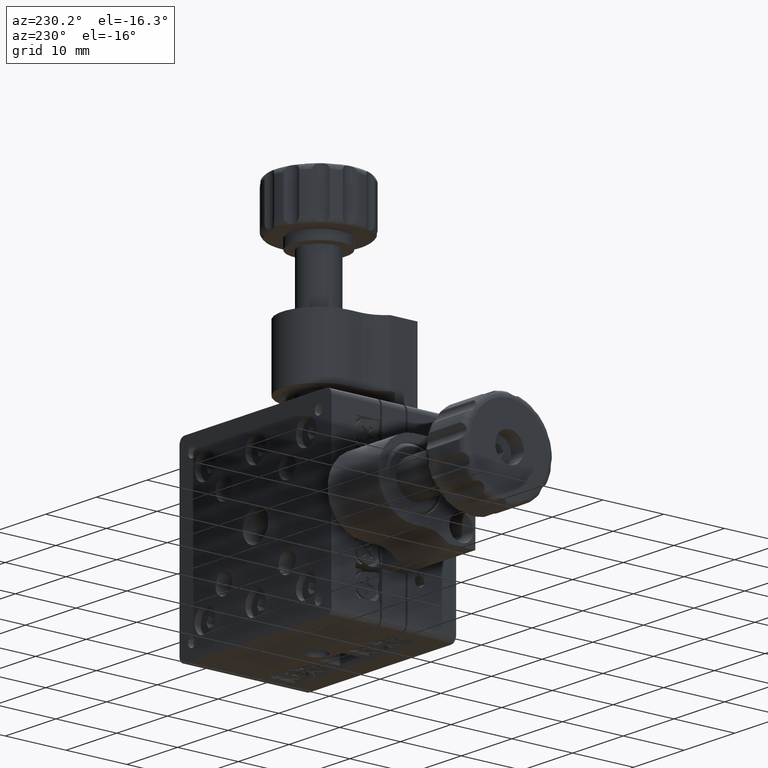
[diagram: clean part render]
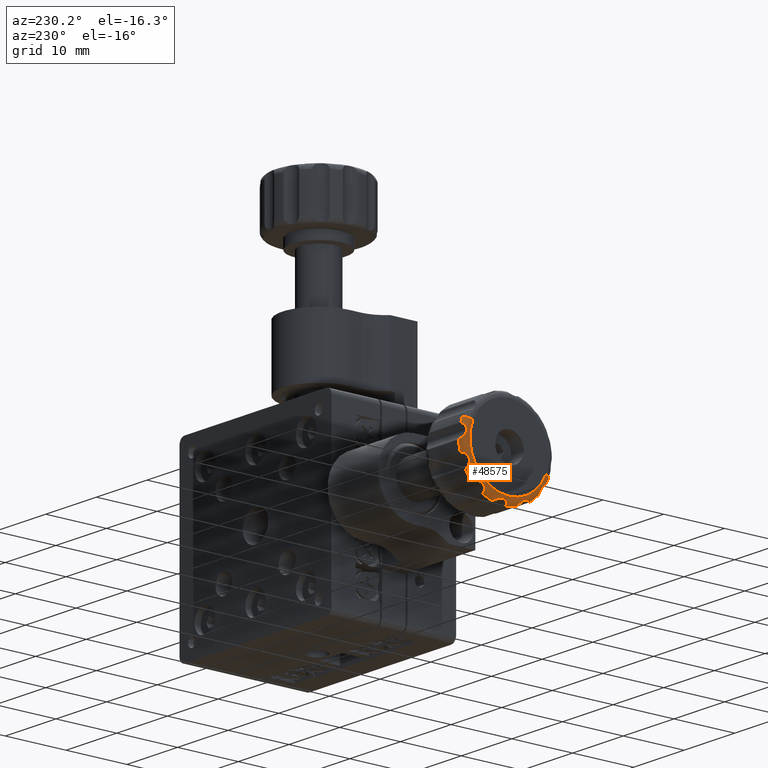
[diagram: same view with one face highlighted and labeled with its STEP entity id]
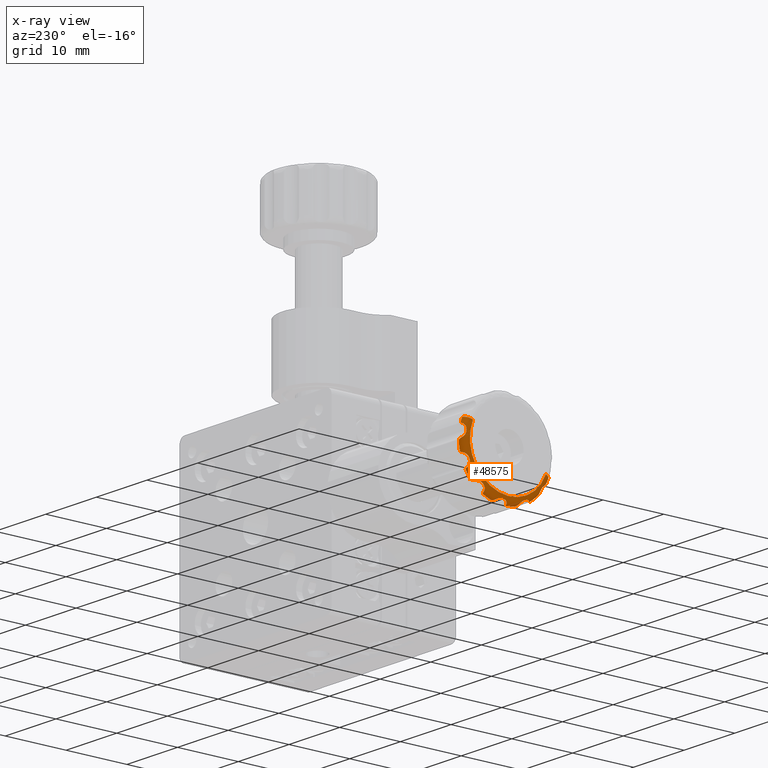
[diagram: x-ray of the same camera — body ghosted, the highlighted face saturated]
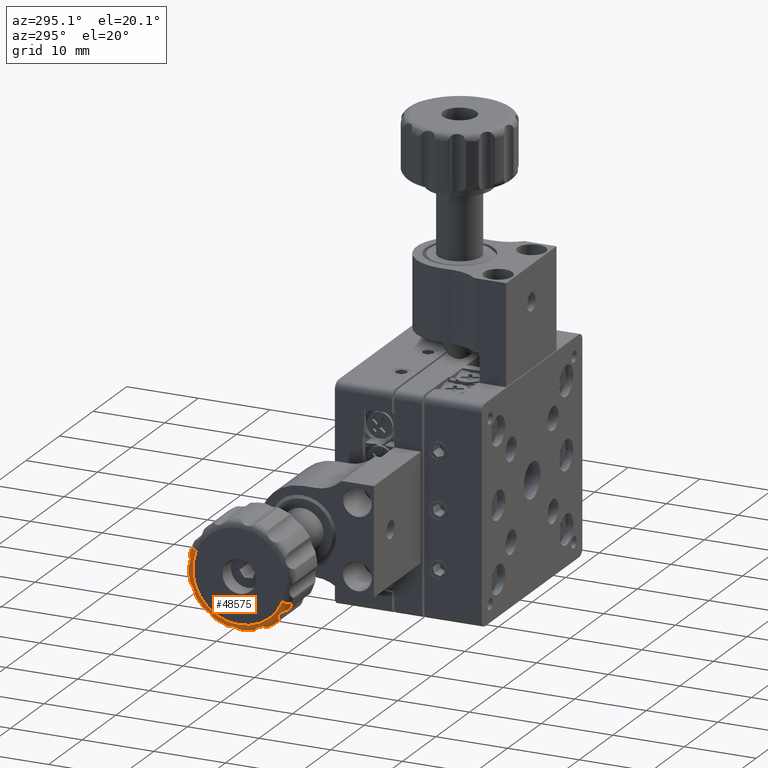
[diagram: same view with one face highlighted and labeled with its STEP entity id]
A machine part, auxiliary view. The second image highlights one B-rep face of the part: STEP entity #48575.
The next image is the same camera in x-ray: the body ghosted, the highlighted face saturated — about 0% of this face is hidden behind the body in this view.
A second angle (auxiliary view) of the same face is appended — the face is thin or edge-on in the first view.
In plain terms, the highlighted toroidal blend (fillet) surface has major radius 6.5 mm and minor (blend) radius 1 mm.
Its self-contained STEP definition (entity closure, byte-faithful):
#133 = AXIS2_PLACEMENT_3D ( 'NONE', #1102, #438, #8916 ) ;
#438 = DIRECTION ( 'NONE',  ( -1.000000000000000000, 0.0000000000000000000, 0.0000000000000000000 ) ) ;
#491 = ORIENTED_EDGE ( 'NONE', *, *, #20602, .F. ) ;
#625 = DIRECTION ( 'NONE',  ( 0.0000000000000000000, -0.9242245927363022000, -0.3818493186865945500 ) ) ;
#701 = TOROIDAL_SURFACE ( 'NONE', #13576, 6.500000000000000000, 1.000000000000000000 ) ;
#800 = DIRECTION ( 'NONE',  ( 1.000000000000000000, -0.0000000000000000000, -0.0000000000000000000 ) ) ;
#950 = ORIENTED_EDGE ( 'NONE', *, *, #3178, .T. ) ;
#1067 = B_SPLINE_CURVE_WITH_KNOTS ( 'NONE', 3,
 ( #5712, #45906, #33422, #41389 ),
 .UNSPECIFIED., .F., .F.,
 ( 4, 4 ),
 ( -6.324575239418007400E-006, 0.0004951179910539883300 ),
 .UNSPECIFIED. ) ;
#1102 = CARTESIAN_POINT ( 'NONE',  ( -47.72923949807299200, 18.50000000000000400, 2.602085213965210600E-015 ) ) ;
#1159 = DIRECTION ( 'NONE',  ( 0.0000000000000000000, -0.9242245927363023100, -0.3818493186865945500 ) ) ;
#1377 = EDGE_CURVE ( 'NONE', #40897, #47603, #5609, .T. ) ;
#1474 = CARTESIAN_POINT ( 'NONE',  ( -46.87427638826797200, 22.12938030061657500, -6.563853453505355900 ) ) ;
#1627 = CARTESIAN_POINT ( 'NONE',  ( -46.72923949807299200, 11.89768340571474200, -3.558007249687071800 ) ) ;
#1660 = CARTESIAN_POINT ( 'NONE',  ( -47.31300178631298100, 22.23845300450247100, -6.288320218083939900 ) ) ;
#1715 = CARTESIAN_POINT ( 'NONE',  ( -47.72923949807299200, 24.50745985278598500, 2.482020571462876900 ) ) ;
#1748 = CARTESIAN_POINT ( 'NONE',  ( -47.16068431325097500, 13.25096975047614800, -5.219132888349426100 ) ) ;
#1762 = DIRECTION ( 'NONE',  ( 1.000000000000000000, -0.0000000000000000000, -0.0000000000000000000 ) ) ;
#1767 = CIRCLE ( 'NONE', #5248, 7.500000000000027500 ) ;
#2260 = CARTESIAN_POINT ( 'NONE',  ( -47.59535316058478600, 25.46582222566719300, 0.7160895652106475900 ) ) ;
#2514 = FACE_OUTER_BOUND ( 'NONE', #39214, .T. ) ;
#2713 = ORIENTED_EDGE ( 'NONE', *, *, #14689, .F. ) ;
#3119 = CARTESIAN_POINT ( 'NONE',  ( -46.72923949807299200, 18.50000000000000400, 2.602085213965210600E-015 ) ) ;
#3178 = EDGE_CURVE ( 'NONE', #34632, #40195, #39506, .T. ) ;
#3181 = CARTESIAN_POINT ( 'NONE',  ( -46.72923949807299200, 25.99677751932213000, -0.2198336320643761200 ) ) ;
#3271 = EDGE_CURVE ( 'NONE', #15847, #16289, #35829, .T. ) ;
#3405 = DIRECTION ( 'NONE',  ( 0.0000000000000000000, -0.9242245927363022000, -0.3818493186865945500 ) ) ;
#3578 = CARTESIAN_POINT ( 'NONE',  ( -47.16068431325096800, 16.56377290285408700, -7.144416791799386600 ) ) ;
#3823 = CARTESIAN_POINT ( 'NONE',  ( -46.87427638826667200, 24.92506226708265200, -3.869773687143574400 ) ) ;
#4089 = DIRECTION ( 'NONE',  ( 1.000000000000000000, -0.0000000000000000000, -0.0000000000000000000 ) ) ;
#4099 = CARTESIAN_POINT ( 'NONE',  ( -47.24184603494131800, 14.85665313200521700, -6.398897979981313700 ) ) ;
#4314 = B_SPLINE_CURVE_WITH_KNOTS ( 'NONE', 3,
 ( #46853, #7504, #18817, #18988 ),
 .UNSPECIFIED., .F., .F.,
 ( 4, 4 ),
 ( 6.474493721195769700E-016, 0.0004984791478706611600 ),
 .UNSPECIFIED. ) ;
#4423 = CARTESIAN_POINT ( 'NONE',  ( -46.72923949807299200, 18.50000000000000400, 2.602085213965210600E-015 ) ) ;
#4473 = CIRCLE ( 'NONE', #36023, 7.500000000000026600 ) ;
#4663 = CARTESIAN_POINT ( 'NONE',  ( -47.31259374960123400, 20.29060998050661300, -7.093446230933680300 ) ) ;
#4714 = EDGE_CURVE ( 'NONE', #41255, #45092, #4314, .T. ) ;
#4832 = B_SPLINE_CURVE_WITH_KNOTS ( 'NONE', 3,
 ( #20574, #36620, #24552, #40610, #44784, #44614 ),
 .UNSPECIFIED., .F., .F.,
 ( 4, 2, 4 ),
 ( 0.002010685543980210600, 0.002394731307899062400, 0.002778777071817914100 ),
 .UNSPECIFIED. ) ;
#4858 = CARTESIAN_POINT ( 'NONE',  ( -46.72923949807299200, 20.63967794180212700, -7.188308445341341700 ) ) ;
#4905 = ORIENTED_EDGE ( 'NONE', *, *, #34656, .F. ) ;
#5048 = CARTESIAN_POINT ( 'NONE',  ( -47.02030611300027400, 13.24785255805609600, -5.311213899665712100 ) ) ;
#5115 = EDGE_CURVE ( 'NONE', #18438, #45870, #5183, .T. ) ;
#5183 = B_SPLINE_CURVE_WITH_KNOTS ( 'NONE', 3,
 ( #17508, #29863, #1660, #25759, #5635, #13803, #30033, #49677, #6133, #37839, #9638, #9964, #13629, #41479 ),
 .UNSPECIFIED., .F., .F.,
 ( 4, 2, 2, 2, 2, 2, 4 ),
 ( 0.0004549188434784903500, 0.0007454011220209202000, 0.001035883400563350100, 0.001616847957648214700, 0.002197812514733079000, 0.002488294793275516700, 0.002778777071817953600 ),
 .UNSPECIFIED. ) ;
#5248 = AXIS2_PLACEMENT_3D ( 'NONE', #21719, #1762, #45112 ) ;
#5465 = B_SPLINE_CURVE_WITH_KNOTS ( 'NONE', 3,
 ( #17257, #13050, #5048, #1748 ),
 .UNSPECIFIED., .F., .F.,
 ( 4, 4 ),
 ( -6.324575239424110300E-006, 0.0004951179910539842100 ),
 .UNSPECIFIED. ) ;
#5485 = DIRECTION ( 'NONE',  ( 0.0000000000000000000, -0.3818493186865946600, 0.9242245927363020900 ) ) ;
#5609 = CIRCLE ( 'NONE', #20533, 7.500000000000025800 ) ;
#5635 = CARTESIAN_POINT ( 'NONE',  ( -47.47273995959718500, 22.33136418245548800, -6.061997129288461600 ) ) ;
#5712 = CARTESIAN_POINT ( 'NONE',  ( -46.72923949807299200, 25.79509669480489400, -1.741138769152789800 ) ) ;
#5904 = CARTESIAN_POINT ( 'NONE',  ( -47.59517619767457600, 25.41579720800249500, 1.100683261038852600 ) ) ;
#6037 = VERTEX_POINT ( 'NONE', #50779 ) ;
#6077 = CARTESIAN_POINT ( 'NONE',  ( -47.55651873016999100, 13.13816540636649700, -4.595608906342050700 ) ) ;
#6133 = CARTESIAN_POINT ( 'NONE',  ( -47.57167470429413900, 23.09021082383154100, -5.352019522001051600 ) ) ;
#6981 = ORIENTED_EDGE ( 'NONE', *, *, #16419, .F. ) ;
#7233 = EDGE_CURVE ( 'NONE', #10167, #26097, #4473, .T. ) ;
#7401 = B_SPLINE_CURVE_WITH_KNOTS ( 'NONE', 3,
 ( #4858, #33072, #13194, #48530 ),
 .UNSPECIFIED., .F., .F.,
 ( 4, 4 ),
 ( -6.324575239416394700E-006, 0.0004951179910539868100 ),
 .UNSPECIFIED. ) ;
#7504 = CARTESIAN_POINT ( 'NONE',  ( -47.02029545191668800, 14.71747604945550800, -6.441011968185068600 ) ) ;
#7538 = DIRECTION ( 'NONE',  ( 0.0000000000000000000, 0.9242245927363023100, 0.3818493186865945500 ) ) ;
#7626 = DIRECTION ( 'NONE',  ( 0.0000000000000000000, -0.9242245927363025300, -0.3818493186865937200 ) ) ;
#7699 = B_SPLINE_CURVE_WITH_KNOTS ( 'NONE', 3,
 ( #42951, #50269, #14754, #42424 ),
 .UNSPECIFIED., .F., .F.,
 ( 4, 4 ),
 ( 6.465708425834016500E-016, 0.0004984791478706566100 ),
 .UNSPECIFIED. ) ;
#7725 = CARTESIAN_POINT ( 'NONE',  ( -47.59517619767457600, 15.99532106157864900, -6.539597700071058600 ) ) ;
#7737 = ORIENTED_EDGE ( 'NONE', *, *, #33682, .F. ) ;
#7850 = CARTESIAN_POINT ( 'NONE',  ( -47.02030611300027400, 16.60711384068796900, -7.225719883015468500 ) ) ;
#7854 = CARTESIAN_POINT ( 'NONE',  ( -47.16068431325097500, 25.64441679179937900, -1.936227097145873700 ) ) ;
#8019 = CARTESIAN_POINT ( 'NONE',  ( -47.24243514451052300, 25.59706901786427800, -1.961467182067537300 ) ) ;
#8790 = CARTESIAN_POINT ( 'NONE',  ( -46.72923949807299200, 18.28016636793557100, -7.496777519322136200 ) ) ;
#8898 = EDGE_CURVE ( 'NONE', #34387, #49086, #1767, .T. ) ;
#8916 = DIRECTION ( 'NONE',  ( 0.0000000000000000000, -0.9242245927363020900, -0.3818493186865946100 ) ) ;
#9029 = DIRECTION ( 'NONE',  ( 1.000000000000000000, -0.0000000000000000000, -0.0000000000000000000 ) ) ;
#9348 = CARTESIAN_POINT ( 'NONE',  ( -46.72923949807299200, 11.89768340571474200, -3.558007249687071800 ) ) ;
#9638 = CARTESIAN_POINT ( 'NONE',  ( -47.42812950136064400, 23.44138125539736000, -5.263375453375866500 ) ) ;
#9830 = ORIENTED_EDGE ( 'NONE', *, *, #44813, .F. ) ;
#9964 = CARTESIAN_POINT ( 'NONE',  ( -47.31259374960121300, 23.59743684685552600, -5.247799646114222200 ) ) ;
#10074 = CARTESIAN_POINT ( 'NONE',  ( -47.31259374960121300, 25.59344623093368300, 1.790609980506647800 ) ) ;
#10167 = VERTEX_POINT ( 'NONE', #42435 ) ;
#10404 = CARTESIAN_POINT ( 'NONE',  ( -47.57212920228192800, 25.53042964037956300, 0.5275541292080611100 ) ) ;
#11424 = CARTESIAN_POINT ( 'NONE',  ( -47.16068431324899300, 24.91432580573251700, -3.694332297532912300 ) ) ;
#11481 = CARTESIAN_POINT ( 'NONE',  ( -47.26935592016931800, 12.16290100260669000, -3.724046873113573000 ) ) ;
#11492 = CARTESIAN_POINT ( 'NONE',  ( -46.87513862090722200, 16.67953018675061800, -7.276162558322204700 ) ) ;
#11549 = CARTESIAN_POINT ( 'NONE',  ( -47.24243514451051600, 16.53853281793240300, -7.097069017864269500 ) ) ;
#11839 = CARTESIAN_POINT ( 'NONE',  ( -46.72923949807299200, 25.43168444552229000, 2.863869890149472100 ) ) ;
#12221 = CARTESIAN_POINT ( 'NONE',  ( -46.72923949807299200, 13.34458124699723300, -5.447169676188522700 ) ) ;
#12399 = EDGE_CURVE ( 'NONE', #18438, #49086, #22389, .T. ) ;
#12705 = CARTESIAN_POINT ( 'NONE',  ( -46.72923949807299200, 23.94716967618851900, -5.155418753002742900 ) ) ;
#12900 = VERTEX_POINT ( 'NONE', #7854 ) ;
#13050 = CARTESIAN_POINT ( 'NONE',  ( -46.87513862090946000, 13.28534561574512600, -5.391106710950261900 ) ) ;
#13101 = CARTESIAN_POINT ( 'NONE',  ( -46.72923949807299200, 11.56831555447771500, -2.863869890149465900 ) ) ;
#13194 = CARTESIAN_POINT ( 'NONE',  ( -47.02030611300028100, 20.47357244107156800, -7.204100058977726200 ) ) ;
#13576 = AXIS2_PLACEMENT_3D ( 'NONE', #45392, #14041, #25653 ) ;
#13629 = CARTESIAN_POINT ( 'NONE',  ( -47.24243514451053700, 23.66550847084815200, -5.247214917292118300 ) ) ;
#13803 = CARTESIAN_POINT ( 'NONE',  ( -47.57212920228193600, 22.47209009795530600, -5.824753603483783200 ) ) ;
#13909 = CARTESIAN_POINT ( 'NONE',  ( -47.16068431325097500, 25.65535998549532700, 1.895386542275578000 ) ) ;
#14041 = DIRECTION ( 'NONE',  ( -1.000000000000000000, 0.0000000000000000000, 0.0000000000000000000 ) ) ;
#14419 = CARTESIAN_POINT ( 'NONE',  ( -47.42812950136063000, 25.52890747997762900, 1.647673970270449700 ) ) ;
#14492 = VERTEX_POINT ( 'NONE', #25909 ) ;
#14518 = AXIS2_PLACEMENT_3D ( 'NONE', #3119, #50824, #7626 ) ;
#14609 = CIRCLE ( 'NONE', #50118, 1.000000000000000000 ) ;
#14619 = CARTESIAN_POINT ( 'NONE',  ( -46.72923949807299200, 24.88248296222083800, -3.938770269635024000 ) ) ;
#14689 = EDGE_CURVE ( 'NONE', #31210, #12900, #27787, .T. ) ;
#14754 = CARTESIAN_POINT ( 'NONE',  ( -46.87427638826740400, 25.99915398776218100, -0.1387911864228632800 ) ) ;
#14776 = EDGE_CURVE ( 'NONE', #15847, #45870, #43307, .T. ) ;
#14813 = ORIENTED_EDGE ( 'NONE', *, *, #4714, .T. ) ;
#15516 = CARTESIAN_POINT ( 'NONE',  ( -47.59561365822931800, 12.86769615455925700, -4.157590486914297200 ) ) ;
#15525 = CARTESIAN_POINT ( 'NONE',  ( -47.16068431325096800, 16.56377290285408700, -7.144416791799386600 ) ) ;
#15584 = CARTESIAN_POINT ( 'NONE',  ( -47.16068431324899300, 14.80566770246704800, -6.414325805732516100 ) ) ;
#15706 = CARTESIAN_POINT ( 'NONE',  ( -47.42848856749412800, 24.85671576393867000, -3.421623052128639900 ) ) ;
#15768 = CARTESIAN_POINT ( 'NONE',  ( -47.31300178631296700, 14.92338144625923300, -6.381755381795374900 ) ) ;
#15847 = VERTEX_POINT ( 'NONE', #35407 ) ;
#16002 = CARTESIAN_POINT ( 'NONE',  ( -47.47246242450102500, 20.06516501373600600, -6.998687116058725600 ) ) ;
#16158 = AXIS2_PLACEMENT_3D ( 'NONE', #35254, #30758, #3405 ) ;
#16289 = VERTEX_POINT ( 'NONE', #14619 ) ;
#16419 = EDGE_CURVE ( 'NONE', #33688, #45092, #24256, .T. ) ;
#16543 = CARTESIAN_POINT ( 'NONE',  ( -46.72923949807299200, 14.56122973036493700, -6.382482962220842100 ) ) ;
#16745 = CARTESIAN_POINT ( 'NONE',  ( -47.16068431325097500, 25.64441679179937900, -1.936227097145873700 ) ) ;
#17257 = CARTESIAN_POINT ( 'NONE',  ( -46.72923949807299200, 13.34458124699723300, -5.447169676188522700 ) ) ;
#17508 = CARTESIAN_POINT ( 'NONE',  ( -47.16068431324899300, 22.20780294714796500, -6.406548522551106300 ) ) ;
#17847 = CARTESIAN_POINT ( 'NONE',  ( -47.16068431324899300, 18.50777728318138300, -7.402135244680914100 ) ) ;
#18091 = CARTESIAN_POINT ( 'NONE',  ( -47.31300178631295900, 25.81507155824323300, 0.09343516371147857200 ) ) ;
#18256 = CARTESIAN_POINT ( 'NONE',  ( -47.47273995959717800, 25.66552560285989800, 0.2870601485120631300 ) ) ;
#18438 = VERTEX_POINT ( 'NONE', #45824 ) ;
#18449 = CARTESIAN_POINT ( 'NONE',  ( -47.16068431325097500, 23.71913288834943100, -5.249030249523822400 ) ) ;
#18671 = ORIENTED_EDGE ( 'NONE', *, *, #5115, .F. ) ;
#18817 = CARTESIAN_POINT ( 'NONE',  ( -46.87427638826670800, 14.63022631285633900, -6.425062267082633800 ) ) ;
#18988 = CARTESIAN_POINT ( 'NONE',  ( -46.72923949807299200, 14.56122973036493700, -6.382482962220842100 ) ) ;
#19078 = VERTEX_POINT ( 'NONE', #32350 ) ;
#19375 = CARTESIAN_POINT ( 'NONE',  ( -46.72923949807299200, 12.49254014721401900, -2.482020571462870700 ) ) ;
#19671 = CARTESIAN_POINT ( 'NONE',  ( -47.47273995959719900, 24.84905727780046900, -3.334161420404395200 ) ) ;
#19701 = AXIS2_PLACEMENT_3D ( 'NONE', #19375, #27302, #7538 ) ;
#20010 = CARTESIAN_POINT ( 'NONE',  ( -47.53271844316449100, 12.57407096069276300, -3.907382497369877900 ) ) ;
#20075 = CARTESIAN_POINT ( 'NONE',  ( -47.42812950136063000, 16.41247377541970900, -6.911049423646293400 ) ) ;
#20113 = EDGE_CURVE ( 'NONE', #10167, #12900, #1067, .T. ) ;
#20136 = CARTESIAN_POINT ( 'NONE',  ( -47.59517619767456200, 19.60068326103880300, -6.915797208002486800 ) ) ;
#20352 = CARTESIAN_POINT ( 'NONE',  ( -46.87513862090777600, 23.89110671094819000, -5.214654384257034500 ) ) ;
#20423 = CARTESIAN_POINT ( 'NONE',  ( -46.72923949807299200, 18.50000000000000400, 2.602085213965210600E-015 ) ) ;
#20464 = ORIENTED_EDGE ( 'NONE', *, *, #12399, .T. ) ;
#20469 = CARTESIAN_POINT ( 'NONE',  ( -47.16068431325097500, 20.39538654227552800, -7.155359985495328700 ) ) ;
#20533 = AXIS2_PLACEMENT_3D ( 'NONE', #20423, #800, #625 ) ;
#20574 = CARTESIAN_POINT ( 'NONE',  ( -47.55651873016999100, 13.13816540636649700, -4.595608906342050700 ) ) ;
#20602 = EDGE_CURVE ( 'NONE', #47603, #42442, #14609, .T. ) ;
#21060 = B_SPLINE_CURVE_WITH_KNOTS ( 'NONE', 3,
 ( #35192, #11492, #7850, #15525 ),
 .UNSPECIFIED., .F., .F.,
 ( 4, 4 ),
 ( -6.324575239417384800E-006, 0.0004951179910539841000 ),
 .UNSPECIFIED. ) ;
#21335 = CARTESIAN_POINT ( 'NONE',  ( -47.02029545191668800, 12.00373218431286800, -3.686818015255622200 ) ) ;
#21719 = CARTESIAN_POINT ( 'NONE',  ( -46.72923949807299200, 18.50000000000000400, 2.602085213965210600E-015 ) ) ;
#21753 = CIRCLE ( 'NONE', #133, 6.500000000000022200 ) ;
#22389 = B_SPLINE_CURVE_WITH_KNOTS ( 'NONE', 3,
 ( #48125, #24410, #1474, #45169 ),
 .UNSPECIFIED., .F., .F.,
 ( 4, 4 ),
 ( 6.544760168973907000E-016, 0.0004984791478706624600 ),
 .UNSPECIFIED. ) ;
#23014 = CARTESIAN_POINT ( 'NONE',  ( -47.16068431324899300, 14.80566770246704800, -6.414325805732516100 ) ) ;
#23066 = ORIENTED_EDGE ( 'NONE', *, *, #28110, .T. ) ;
#23132 = ORIENTED_EDGE ( 'NONE', *, *, #31108, .T. ) ;
#23145 = ORIENTED_EDGE ( 'NONE', *, *, #25241, .T. ) ;
#23472 = ORIENTED_EDGE ( 'NONE', *, *, #7233, .F. ) ;
#23634 = CARTESIAN_POINT ( 'NONE',  ( -47.58473519766072000, 12.77481088041168000, -4.063977299230096200 ) ) ;
#23641 = CARTESIAN_POINT ( 'NONE',  ( -47.57212920228193600, 24.85230773269178800, -3.058339542424249700 ) ) ;
#23816 = CARTESIAN_POINT ( 'NONE',  ( -47.42812950136063000, 25.41104942364629300, -2.087526224580233100 ) ) ;
#23950 = CARTESIAN_POINT ( 'NONE',  ( -47.24243514451055900, 20.34985410057214100, -7.126975652915724000 ) ) ;
#24021 = CARTESIAN_POINT ( 'NONE',  ( -46.72923949807299200, 25.68830844534133100, 2.139677941802175600 ) ) ;
#24127 = CARTESIAN_POINT ( 'NONE',  ( -47.57167470429413900, 19.79922942116387600, -6.930090279518937600 ) ) ;
#24242 = CARTESIAN_POINT ( 'NONE',  ( -47.02029545191668800, 18.44474415249793600, -7.469341965800115400 ) ) ;
#24256 = CIRCLE ( 'NONE', #16158, 7.500000000000025800 ) ;
#24339 = ORIENTED_EDGE ( 'NONE', *, *, #14776, .T. ) ;
#24410 = CARTESIAN_POINT ( 'NONE',  ( -47.02029545191668800, 22.18681801525563200, -6.496267815687122700 ) ) ;
#24442 = CARTESIAN_POINT ( 'NONE',  ( -47.16068431324899300, 18.50777728318138300, -7.402135244680914100 ) ) ;
#24457 = CARTESIAN_POINT ( 'NONE',  ( -47.57212920228191400, 19.02755412920800300, -7.030429640379560800 ) ) ;
#24552 = CARTESIAN_POINT ( 'NONE',  ( -47.48771652135702900, 13.21769498339346100, -4.831384555647922200 ) ) ;
#25157 = B_SPLINE_CURVE_WITH_KNOTS ( 'NONE', 3,
 ( #15584, #4099, #15768, #43404, #27312, #47067, #31791, #7725, #31437, #51279, #20075, #43240, #11549, #3578 ),
 .UNSPECIFIED., .F., .F.,
 ( 4, 2, 2, 2, 2, 2, 4 ),
 ( 0.0004549188434784861800, 0.0007454011220209129300, 0.001035883400563339700, 0.001616847957648205100, 0.002197812514733060400, 0.002488294793275492000, 0.002778777071817923600 ),
 .UNSPECIFIED. ) ;
#25241 = EDGE_CURVE ( 'NONE', #34387, #42828, #7401, .T. ) ;
#25371 = ORIENTED_EDGE ( 'NONE', *, *, #51227, .F. ) ;
#25653 = DIRECTION ( 'NONE',  ( 0.0000000000000000000, -0.9242245927363020900, -0.3818493186865945500 ) ) ;
#25725 = ORIENTED_EDGE ( 'NONE', *, *, #20113, .T. ) ;
#25759 = CARTESIAN_POINT ( 'NONE',  ( -47.42848856749414200, 22.29426581014358500, -6.141570367287192400 ) ) ;
#25909 = CARTESIAN_POINT ( 'NONE',  ( -47.16068431324899300, 12.09345147744888600, -3.707802947147968100 ) ) ;
#25949 = AXIS2_PLACEMENT_3D ( 'NONE', #51215, #39527, #27619 ) ;
#26026 = CARTESIAN_POINT ( 'NONE',  ( -47.42848856749412100, 25.71588886227223000, 0.2151453966515398100 ) ) ;
#26097 = VERTEX_POINT ( 'NONE', #3181 ) ;
#26401 = ORIENTED_EDGE ( 'NONE', *, *, #3271, .F. ) ;
#26452 = ORIENTED_EDGE ( 'NONE', *, *, #39821, .T. ) ;
#26531 = ORIENTED_EDGE ( 'NONE', *, *, #47011, .F. ) ;
#26592 = EDGE_CURVE ( 'NONE', #19078, #36882, #31714, .T. ) ;
#27302 = DIRECTION ( 'NONE',  ( 0.0000000000000000000, 0.3818493186865945500, -0.9242245927363020900 ) ) ;
#27312 = CARTESIAN_POINT ( 'NONE',  ( -47.47273995959719200, 15.16583857959558500, -6.349057277800487700 ) ) ;
#27538 = VERTEX_POINT ( 'NONE', #6077 ) ;
#27579 = CARTESIAN_POINT ( 'NONE',  ( -47.02029545191668800, 24.94101196818505500, -3.782523950544460300 ) ) ;
#27617 = CARTESIAN_POINT ( 'NONE',  ( -47.57167470429414600, 25.15124894316494100, -2.339879455687360600 ) ) ;
#27619 = DIRECTION ( 'NONE',  ( 0.0000000000000000000, -0.9242245927363022000, -0.3818493186865945500 ) ) ;
#27736 = CARTESIAN_POINT ( 'NONE',  ( -47.47273995959718500, 18.78706014851200500, -7.165525602859896800 ) ) ;
#27787 = B_SPLINE_CURVE_WITH_KNOTS ( 'NONE', 3,
 ( #31552, #39346, #47355, #15706, #19671, #23641, #51394, #50856, #27617, #47544, #23816, #27948, #8019, #16745 ),
 .UNSPECIFIED., .F., .F.,
 ( 4, 2, 2, 2, 2, 2, 4 ),
 ( 0.0004549188434784865000, 0.0007454011220209121700, 0.001035883400563337700, 0.001616847957648190200, 0.002197812514733042200, 0.002488294793275468200, 0.002778777071817894600 ),
 .UNSPECIFIED. ) ;
#27948 = CARTESIAN_POINT ( 'NONE',  ( -47.31259374960122000, 25.53840962662086500, -1.996009384078118800 ) ) ;
#28110 = EDGE_CURVE ( 'NONE', #14492, #48983, #43604, .T. ) ;
#28688 = CARTESIAN_POINT ( 'NONE',  ( -46.72923949807299200, 18.28016636793557100, -7.496777519322136200 ) ) ;
#28763 = CARTESIAN_POINT ( 'NONE',  ( -46.87427638826662200, 11.93614654649578800, -3.629380300618710600 ) ) ;
#29627 = CARTESIAN_POINT ( 'NONE',  ( -47.24184603494133200, 25.86328164088613600, 0.04421804750876237600 ) ) ;
#29863 = CARTESIAN_POINT ( 'NONE',  ( -47.24184603494133200, 22.21993477289136400, -6.354679932472603100 ) ) ;
#30033 = CARTESIAN_POINT ( 'NONE',  ( -47.59535316058477900, 22.60306286769092300, -5.674534223068722100 ) ) ;
#30183 = CARTESIAN_POINT ( 'NONE',  ( -47.02030611300028100, 25.70410005897771900, 1.973572441071618200 ) ) ;
#30499 = CARTESIAN_POINT ( 'NONE',  ( -46.72923949807299200, 22.05800724968707300, -6.602316594285253100 ) ) ;
#30518 = CARTESIAN_POINT ( 'NONE',  ( -46.72923949807299200, 25.68830844534133100, 2.139677941802175600 ) ) ;
#30639 = EDGE_CURVE ( 'NONE', #34632, #48983, #46922, .T. ) ;
#30758 = DIRECTION ( 'NONE',  ( 1.000000000000000000, -0.0000000000000000000, -0.0000000000000000000 ) ) ;
#30858 = EDGE_CURVE ( 'NONE', #33688, #48789, #5465, .T. ) ;
#31108 = EDGE_CURVE ( 'NONE', #40720, #26097, #7699, .T. ) ;
#31195 = CARTESIAN_POINT ( 'NONE',  ( -47.55651873016999100, 13.13816540636649700, -4.595608906342050700 ) ) ;
#31210 = VERTEX_POINT ( 'NONE', #11424 ) ;
#31437 = CARTESIAN_POINT ( 'NONE',  ( -47.57167470429412500, 16.16012054431259100, -6.651248943164949500 ) ) ;
#31552 = CARTESIAN_POINT ( 'NONE',  ( -47.16068431324899300, 24.91432580573251700, -3.694332297532912300 ) ) ;
#31714 = CIRCLE ( 'NONE', #14518, 7.500000000000026600 ) ;
#31726 = CARTESIAN_POINT ( 'NONE',  ( -47.49064572686671000, 12.46492324307072500, -3.843916057572235100 ) ) ;
#31729 = CARTESIAN_POINT ( 'NONE',  ( -47.02030611300028100, 23.81121389966572000, -5.252147441943871600 ) ) ;
#31791 = CARTESIAN_POINT ( 'NONE',  ( -47.59535316058477200, 15.63724064202373600, -6.390623788279343700 ) ) ;
#31961 = DIRECTION ( 'NONE',  ( 0.0000000000000000000, -0.9242245927363032000, -0.3818493186865920500 ) ) ;
#32350 = CARTESIAN_POINT ( 'NONE',  ( -46.72923949807299200, 16.75886123084715600, -7.295096694804898100 ) ) ;
#32402 = CARTESIAN_POINT ( 'NONE',  ( -47.16068431325096800, 16.56377290285408700, -7.144416791799386600 ) ) ;
#32460 = B_SPLINE_CURVE_WITH_KNOTS ( 'NONE', 3,
 ( #43516, #11481, #39163, #31726, #20010, #23634, #15516, #43173, #43002, #31195 ),
 .UNSPECIFIED., .F., .F.,
 ( 4, 2, 2, 2, 4 ),
 ( 0.0004549188434784896500, 0.0008438605186039198900, 0.001232802193729350100, 0.001621743868854780400, 0.002010685543980210600 ),
 .UNSPECIFIED. ) ;
#32505 = CARTESIAN_POINT ( 'NONE',  ( -46.87427638826650200, 18.36120881357870600, -7.499153987762235300 ) ) ;
#32572 = ORIENTED_EDGE ( 'NONE', *, *, #1377, .F. ) ;
#33026 = CARTESIAN_POINT ( 'NONE',  ( -46.72923949807299200, 24.50745985278598500, 2.482020571462876500 ) ) ;
#33056 = CARTESIAN_POINT ( 'NONE',  ( -47.16068431324899300, 12.09345147744888600, -3.707802947147968100 ) ) ;
#33072 = CARTESIAN_POINT ( 'NONE',  ( -46.87513862090908400, 20.56150817406761900, -7.211576524195930200 ) ) ;
#33422 = CARTESIAN_POINT ( 'NONE',  ( -47.02030611300028100, 25.72571988301547600, -1.892886159311977200 ) ) ;
#33612 = CARTESIAN_POINT ( 'NONE',  ( -47.47246242450101800, 25.49868711605873300, 1.565165013736054000 ) ) ;
#33656 = B_SPLINE_CURVE_WITH_KNOTS ( 'NONE', 3,
 ( #36173, #43817, #47667, #39467, #27736, #24457, #39827, #20136, #24127, #16002, #35670, #4663, #23950, #20469 ),
 .UNSPECIFIED., .F., .F.,
 ( 4, 2, 2, 2, 2, 2, 4 ),
 ( 0.0004549188434784892100, 0.0007454011220209207400, 0.001035883400563352300, 0.001616847957648208400, 0.002197812514733064700, 0.002488294793275495900, 0.002778777071817927100 ),
 .UNSPECIFIED. ) ;
#33682 = EDGE_CURVE ( 'NONE', #42442, #40195, #21753, .T. ) ;
#33688 = VERTEX_POINT ( 'NONE', #12221 ) ;
#34164 = CARTESIAN_POINT ( 'NONE',  ( -46.87513862091023500, 25.71157652419533300, 2.061508174069643000 ) ) ;
#34387 = VERTEX_POINT ( 'NONE', #37876 ) ;
#34632 = VERTEX_POINT ( 'NONE', #13101 ) ;
#34656 = EDGE_CURVE ( 'NONE', #27538, #48789, #4832, .T. ) ;
#35192 = CARTESIAN_POINT ( 'NONE',  ( -46.72923949807299200, 16.75886123084715600, -7.295096694804898100 ) ) ;
#35254 = CARTESIAN_POINT ( 'NONE',  ( -46.72923949807299200, 18.50000000000000400, 2.602085213965210600E-015 ) ) ;
#35407 = CARTESIAN_POINT ( 'NONE',  ( -46.72923949807299200, 23.94716967618851900, -5.155418753002742900 ) ) ;
#35670 = CARTESIAN_POINT ( 'NONE',  ( -47.42812950136063700, 20.14767397027040700, -7.028907479977625900 ) ) ;
#35829 = CIRCLE ( 'NONE', #43556, 7.500000000000025800 ) ;
#35994 = CARTESIAN_POINT ( 'NONE',  ( -47.16068431325097500, 13.25096975047614800, -5.219132888349426100 ) ) ;
#36023 = AXIS2_PLACEMENT_3D ( 'NONE', #48529, #9029, #48707 ) ;
#36127 = CARTESIAN_POINT ( 'NONE',  ( -47.72923949807299200, 12.49254014721401900, -2.482020571462871100 ) ) ;
#36173 = CARTESIAN_POINT ( 'NONE',  ( -47.16068431324899300, 18.50777728318138300, -7.402135244680914100 ) ) ;
#36620 = CARTESIAN_POINT ( 'NONE',  ( -47.53008497190339900, 13.18587744986681000, -4.711090699324138600 ) ) ;
#36882 = VERTEX_POINT ( 'NONE', #28688 ) ;
#37125 = EDGE_CURVE ( 'NONE', #14492, #27538, #32460, .T. ) ;
#37616 = CARTESIAN_POINT ( 'NONE',  ( -47.24243514451055100, 25.62697565291573200, 1.849854100572173400 ) ) ;
#37839 = CARTESIAN_POINT ( 'NONE',  ( -47.47246242450104600, 23.35481622103938200, -5.278458328777690100 ) ) ;
#37876 = CARTESIAN_POINT ( 'NONE',  ( -46.72923949807299200, 20.63967794180212700, -7.188308445341341700 ) ) ;
#38668 = CARTESIAN_POINT ( 'NONE',  ( -47.16068431325097500, 25.65535998549532700, 1.895386542275578000 ) ) ;
#39011 = ORIENTED_EDGE ( 'NONE', *, *, #41670, .T. ) ;
#39138 = CARTESIAN_POINT ( 'NONE',  ( -46.72923949807299200, 24.88248296222083800, -3.938770269635024000 ) ) ;
#39163 = CARTESIAN_POINT ( 'NONE',  ( -47.35964898082626500, 12.25888517947706700, -3.752187274801912900 ) ) ;
#39214 = EDGE_LOOP ( 'NONE', ( #491, #32572, #39011, #9830, #23132, #23472, #25725, #2713, #45903, #26401, #24339, #18671, #20464, #49586, #23145, #25371, #26452, #49811, #45566, #26531, #14813, #6981, #50142, #4905, #45598, #23066, #44616, #950, #7737 ) ) ;
#39346 = CARTESIAN_POINT ( 'NONE',  ( -47.24184603494132500, 24.89889797998131000, -3.643346867994776300 ) ) ;
#39467 = CARTESIAN_POINT ( 'NONE',  ( -47.42848856749413500, 18.71514539665147900, -7.215888862272227500 ) ) ;
#39506 = CIRCLE ( 'NONE', #19701, 1.000000000000000000 ) ;
#39527 = DIRECTION ( 'NONE',  ( 1.000000000000000000, -0.0000000000000000000, -0.0000000000000000000 ) ) ;
#39724 = B_SPLINE_CURVE_WITH_KNOTS ( 'NONE', 3,
 ( #41935, #29627, #18091, #26026, #18256, #10404, #2260, #5904, #41419, #33612, #14419, #10074, #37616, #13909 ),
 .UNSPECIFIED., .F., .F.,
 ( 4, 2, 2, 2, 2, 2, 4 ),
 ( 0.0004549188434784899700, 0.0007454011220209181400, 0.001035883400563346400, 0.001616847957648202700, 0.002197812514733059900, 0.002488294793275485500, 0.002778777071817910600 ),
 .UNSPECIFIED. ) ;
#39821 = EDGE_CURVE ( 'NONE', #48861, #36882, #44860, .T. ) ;
#39827 = CARTESIAN_POINT ( 'NONE',  ( -47.59535316058477900, 19.21608956521059500, -6.965822225667177600 ) ) ;
#40195 = VERTEX_POINT ( 'NONE', #36127 ) ;
#40610 = CARTESIAN_POINT ( 'NONE',  ( -47.35699739749907200, 13.25134034724229800, -5.050923777233117900 ) ) ;
#40720 = VERTEX_POINT ( 'NONE', #46669 ) ;
#40897 = VERTEX_POINT ( 'NONE', #24021 ) ;
#41255 = VERTEX_POINT ( 'NONE', #23014 ) ;
#41389 = CARTESIAN_POINT ( 'NONE',  ( -47.16068431325097500, 25.64441679179937900, -1.936227097145873700 ) ) ;
#41419 = CARTESIAN_POINT ( 'NONE',  ( -47.57167470429411800, 25.43009027951894700, 1.299229421163924400 ) ) ;
#41479 = CARTESIAN_POINT ( 'NONE',  ( -47.16068431325097500, 23.71913288834943100, -5.249030249523822400 ) ) ;
#41670 = EDGE_CURVE ( 'NONE', #40897, #6037, #50260, .T. ) ;
#41735 = EDGE_CURVE ( 'NONE', #19078, #48406, #21060, .T. ) ;
#41935 = CARTESIAN_POINT ( 'NONE',  ( -47.16068431324899300, 25.90213524468091300, 0.007777283181440147000 ) ) ;
#42424 = CARTESIAN_POINT ( 'NONE',  ( -46.72923949807299200, 25.99677751932213000, -0.2198336320643761200 ) ) ;
#42435 = CARTESIAN_POINT ( 'NONE',  ( -46.72923949807299200, 25.79509669480489400, -1.741138769152789800 ) ) ;
#42442 = VERTEX_POINT ( 'NONE', #1715 ) ;
#42828 = VERTEX_POINT ( 'NONE', #42929 ) ;
#42929 = CARTESIAN_POINT ( 'NONE',  ( -47.16068431325097500, 20.39538654227552800, -7.155359985495328700 ) ) ;
#42951 = CARTESIAN_POINT ( 'NONE',  ( -47.16068431324899300, 25.90213524468091300, 0.007777283181440147000 ) ) ;
#43002 = CARTESIAN_POINT ( 'NONE',  ( -47.58328947258140600, 13.08984511783288900, -4.478654922653712200 ) ) ;
#43173 = CARTESIAN_POINT ( 'NONE',  ( -47.59489998933591400, 13.02479999361304100, -4.364389429713937400 ) ) ;
#43240 = CARTESIAN_POINT ( 'NONE',  ( -47.31259374960119900, 16.50399061592182500, -7.038409626620851800 ) ) ;
#43307 = B_SPLINE_CURVE_WITH_KNOTS ( 'NONE', 3,
 ( #12705, #20352, #31729, #48048 ),
 .UNSPECIFIED., .F., .F.,
 ( 4, 4 ),
 ( -6.324575239425488400E-006, 0.0004951179910539766200 ),
 .UNSPECIFIED. ) ;
#43404 = CARTESIAN_POINT ( 'NONE',  ( -47.42848856749411400, 15.07837694787134500, -6.356715763938687800 ) ) ;
#43516 = CARTESIAN_POINT ( 'NONE',  ( -47.16068431324899300, 12.09345147744888600, -3.707802947147968100 ) ) ;
#43556 = AXIS2_PLACEMENT_3D ( 'NONE', #4423, #4089, #31961 ) ;
#43604 = B_SPLINE_CURVE_WITH_KNOTS ( 'NONE', 3,
 ( #33056, #21335, #28763, #9348 ),
 .UNSPECIFIED., .F., .F.,
 ( 4, 4 ),
 ( 6.472089450509290700E-016, 0.0004984791478706601800 ),
 .UNSPECIFIED. ) ;
#43817 = CARTESIAN_POINT ( 'NONE',  ( -47.24184603494134600, 18.54421804750870700, -7.363281640886134100 ) ) ;
#44021 = EDGE_CURVE ( 'NONE', #31210, #16289, #45785, .T. ) ;
#44614 = CARTESIAN_POINT ( 'NONE',  ( -47.16068431325097500, 13.25096975047614800, -5.219132888349426100 ) ) ;
#44616 = ORIENTED_EDGE ( 'NONE', *, *, #30639, .F. ) ;
#44784 = CARTESIAN_POINT ( 'NONE',  ( -47.26876684620140900, 13.25336979586682400, -5.148236204092731000 ) ) ;
#44813 = EDGE_CURVE ( 'NONE', #40720, #6037, #39724, .T. ) ;
#44860 = B_SPLINE_CURVE_WITH_KNOTS ( 'NONE', 3,
 ( #17847, #24242, #32505, #8790 ),
 .UNSPECIFIED., .F., .F.,
 ( 4, 4 ),
 ( 6.543288650972344300E-016, 0.0004984791478706653900 ),
 .UNSPECIFIED. ) ;
#45092 = VERTEX_POINT ( 'NONE', #16543 ) ;
#45112 = DIRECTION ( 'NONE',  ( 0.0000000000000000000, -0.9242245927363028600, -0.3818493186865928900 ) ) ;
#45169 = CARTESIAN_POINT ( 'NONE',  ( -46.72923949807299200, 22.05800724968707300, -6.602316594285253100 ) ) ;
#45392 = CARTESIAN_POINT ( 'NONE',  ( -46.72923949807299200, 18.50000000000000400, 2.602085213965210600E-015 ) ) ;
#45566 = ORIENTED_EDGE ( 'NONE', *, *, #41735, .T. ) ;
#45598 = ORIENTED_EDGE ( 'NONE', *, *, #37125, .F. ) ;
#45785 = B_SPLINE_CURVE_WITH_KNOTS ( 'NONE', 3,
 ( #47326, #27579, #3823, #39138 ),
 .UNSPECIFIED., .F., .F.,
 ( 4, 4 ),
 ( 6.470036033833989900E-016, 0.0004984791478706567100 ),
 .UNSPECIFIED. ) ;
#45824 = CARTESIAN_POINT ( 'NONE',  ( -47.16068431324899300, 22.20780294714796500, -6.406548522551106300 ) ) ;
#45870 = VERTEX_POINT ( 'NONE', #18449 ) ;
#45903 = ORIENTED_EDGE ( 'NONE', *, *, #44021, .T. ) ;
#45906 = CARTESIAN_POINT ( 'NONE',  ( -46.87513862090849400, 25.77616255832273100, -1.820469813247121500 ) ) ;
#46669 = CARTESIAN_POINT ( 'NONE',  ( -47.16068431324899300, 25.90213524468091300, 0.007777283181440147000 ) ) ;
#46853 = CARTESIAN_POINT ( 'NONE',  ( -47.16068431324899300, 14.80566770246704800, -6.414325805732516100 ) ) ;
#46922 = CIRCLE ( 'NONE', #25949, 7.500000000000025800 ) ;
#47011 = EDGE_CURVE ( 'NONE', #41255, #48406, #25157, .T. ) ;
#47067 = CARTESIAN_POINT ( 'NONE',  ( -47.57212920228190700, 15.44166045757572900, -6.352307732691805600 ) ) ;
#47326 = CARTESIAN_POINT ( 'NONE',  ( -47.16068431324899300, 24.91432580573251700, -3.694332297532912300 ) ) ;
#47355 = CARTESIAN_POINT ( 'NONE',  ( -47.31300178631298100, 24.88175538179536200, -3.576618553740752200 ) ) ;
#47544 = CARTESIAN_POINT ( 'NONE',  ( -47.47246242450103900, 25.34362334251372000, -2.143870895019321500 ) ) ;
#47603 = VERTEX_POINT ( 'NONE', #11839 ) ;
#47667 = CARTESIAN_POINT ( 'NONE',  ( -47.31300178631295900, 18.59343516371141900, -7.315071558243230900 ) ) ;
#48048 = CARTESIAN_POINT ( 'NONE',  ( -47.16068431325097500, 23.71913288834943100, -5.249030249523822400 ) ) ;
#48125 = CARTESIAN_POINT ( 'NONE',  ( -47.16068431324899300, 22.20780294714796500, -6.406548522551106300 ) ) ;
#48406 = VERTEX_POINT ( 'NONE', #32402 ) ;
#48529 = CARTESIAN_POINT ( 'NONE',  ( -46.72923949807299200, 18.50000000000000400, 2.602085213965210600E-015 ) ) ;
#48530 = CARTESIAN_POINT ( 'NONE',  ( -47.16068431325097500, 20.39538654227552800, -7.155359985495328700 ) ) ;
#48575 = ADVANCED_FACE ( 'NONE', ( #2514 ), #701, .T. ) ;
#48707 = DIRECTION ( 'NONE',  ( 0.0000000000000000000, -0.9242245927363000900, -0.3818493186865994400 ) ) ;
#48789 = VERTEX_POINT ( 'NONE', #35994 ) ;
#48861 = VERTEX_POINT ( 'NONE', #24442 ) ;
#48983 = VERTEX_POINT ( 'NONE', #1627 ) ;
#49086 = VERTEX_POINT ( 'NONE', #30499 ) ;
#49586 = ORIENTED_EDGE ( 'NONE', *, *, #8898, .F. ) ;
#49677 = CARTESIAN_POINT ( 'NONE',  ( -47.59517619767456900, 22.91111826958114900, -5.438914439032232400 ) ) ;
#49811 = ORIENTED_EDGE ( 'NONE', *, *, #26592, .F. ) ;
#50118 = AXIS2_PLACEMENT_3D ( 'NONE', #33026, #5485, #1159 ) ;
#50142 = ORIENTED_EDGE ( 'NONE', *, *, #30858, .T. ) ;
#50260 = B_SPLINE_CURVE_WITH_KNOTS ( 'NONE', 3,
 ( #30518, #34164, #30183, #38668 ),
 .UNSPECIFIED., .F., .F.,
 ( 4, 4 ),
 ( -6.324575239422043500E-006, 0.0004951179910539845300 ),
 .UNSPECIFIED. ) ;
#50269 = CARTESIAN_POINT ( 'NONE',  ( -47.02029545191668800, 25.96934196580011500, -0.05525584750202824200 ) ) ;
#50779 = CARTESIAN_POINT ( 'NONE',  ( -47.16068431325097500, 25.65535998549532700, 1.895386542275578000 ) ) ;
#50824 = DIRECTION ( 'NONE',  ( 1.000000000000000000, -0.0000000000000000000, -0.0000000000000000000 ) ) ;
#50856 = CARTESIAN_POINT ( 'NONE',  ( -47.59517619767458300, 25.03959770007104500, -2.504678938421312400 ) ) ;
#51215 = CARTESIAN_POINT ( 'NONE',  ( -46.72923949807299200, 18.50000000000000400, 2.602085213965210600E-015 ) ) ;
#51227 = EDGE_CURVE ( 'NONE', #48861, #42828, #33656, .T. ) ;
#51279 = CARTESIAN_POINT ( 'NONE',  ( -47.47246242450100300, 16.35612910498062800, -6.843623342513719600 ) ) ;
#51394 = CARTESIAN_POINT ( 'NONE',  ( -47.59535316058478600, 24.89062378827933100, -2.862759357976227800 ) ) ;